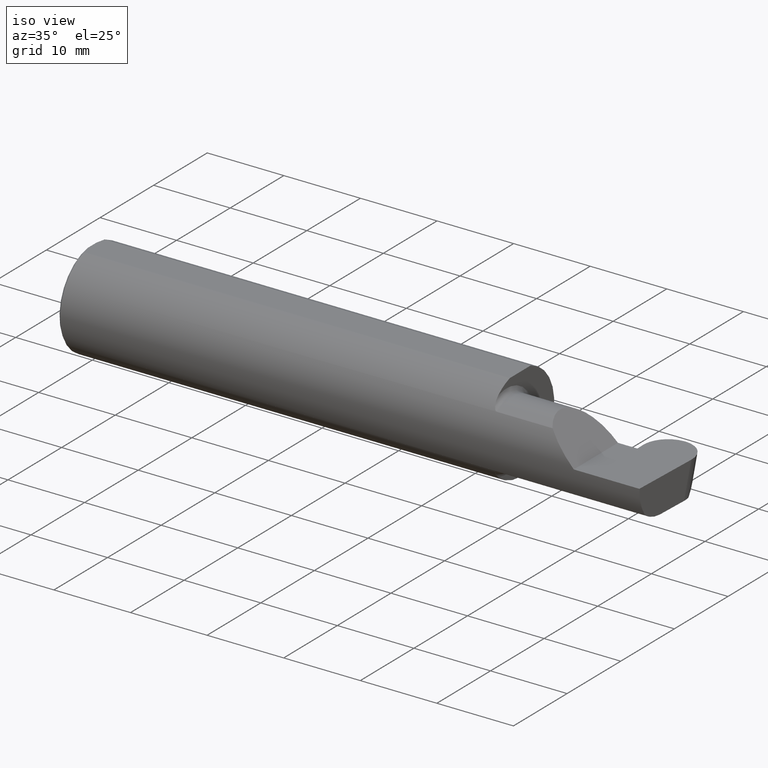
[diagram: clean part render]
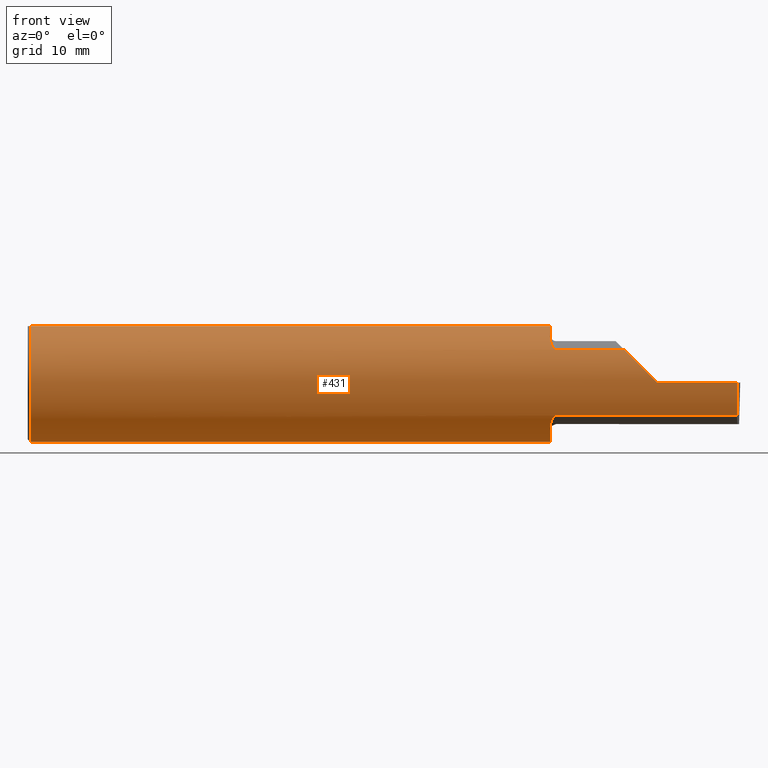
[diagram: tour spotlight — one face highlighted and labeled with its STEP entity id]
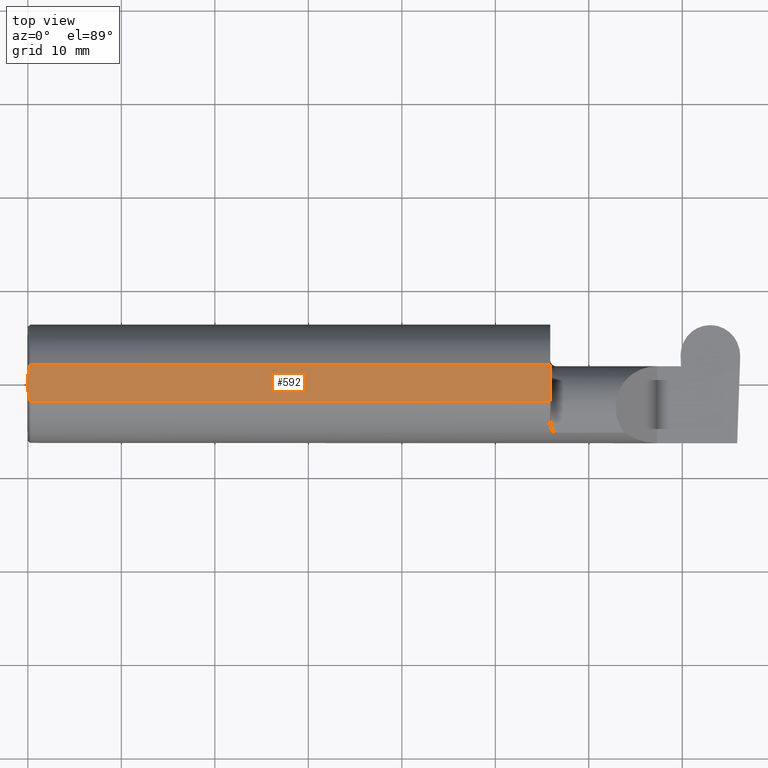
[diagram: tour spotlight — one face highlighted and labeled with its STEP entity id]
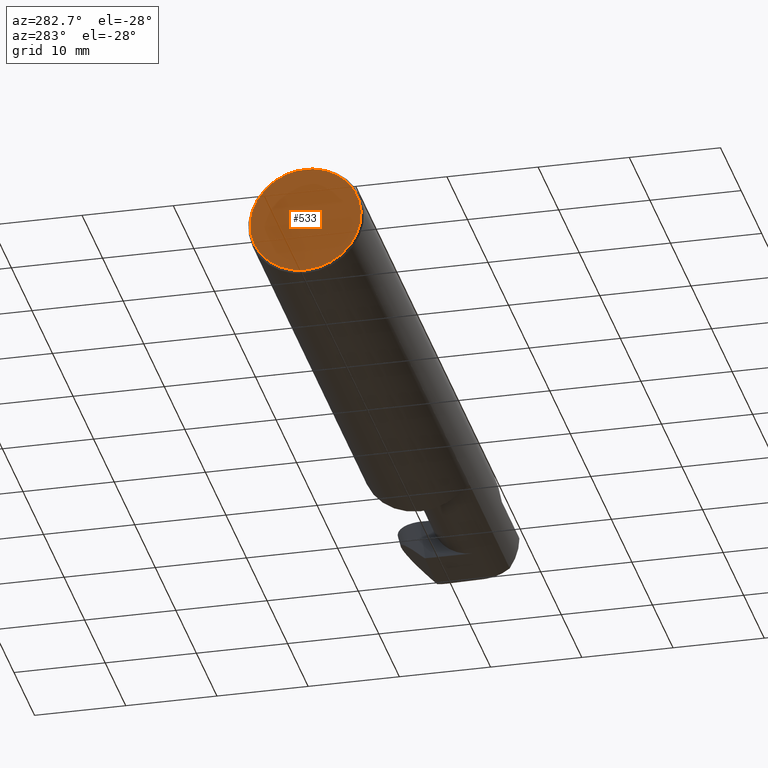
[diagram: tour spotlight — one face highlighted and labeled with its STEP entity id]
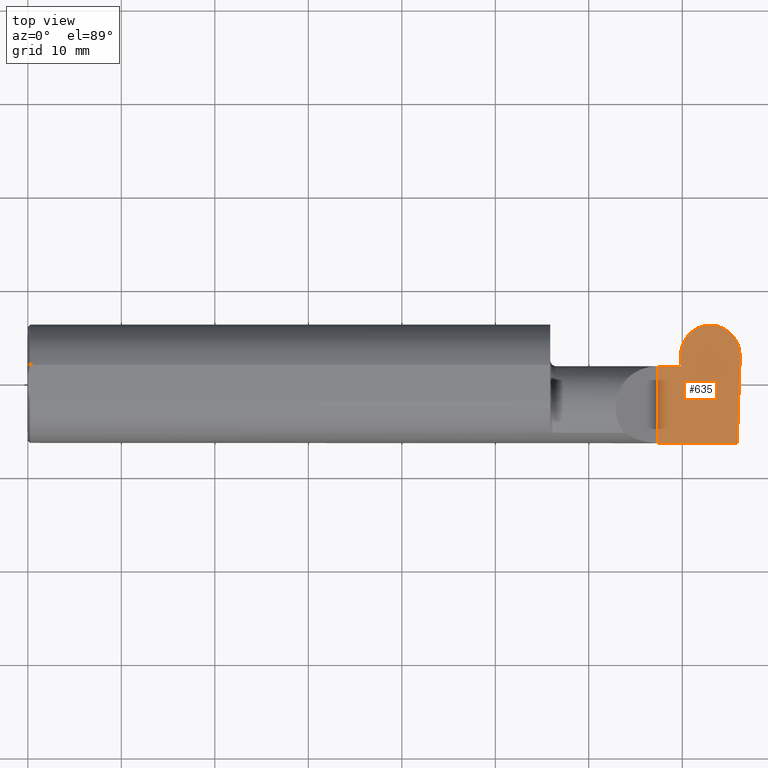
[diagram: tour spotlight — one face highlighted and labeled with its STEP entity id]
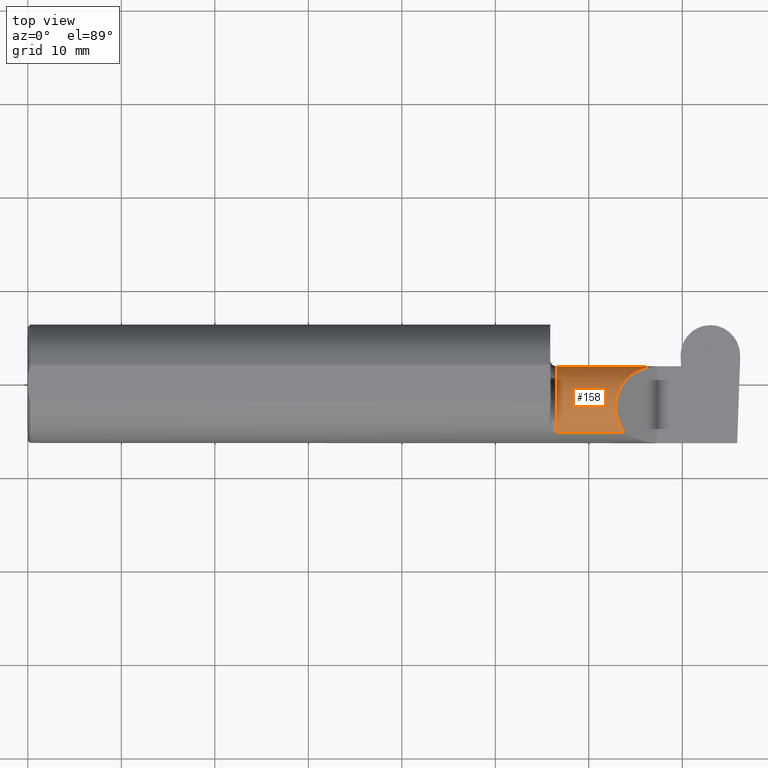
[diagram: tour spotlight — one face highlighted and labeled with its STEP entity id]
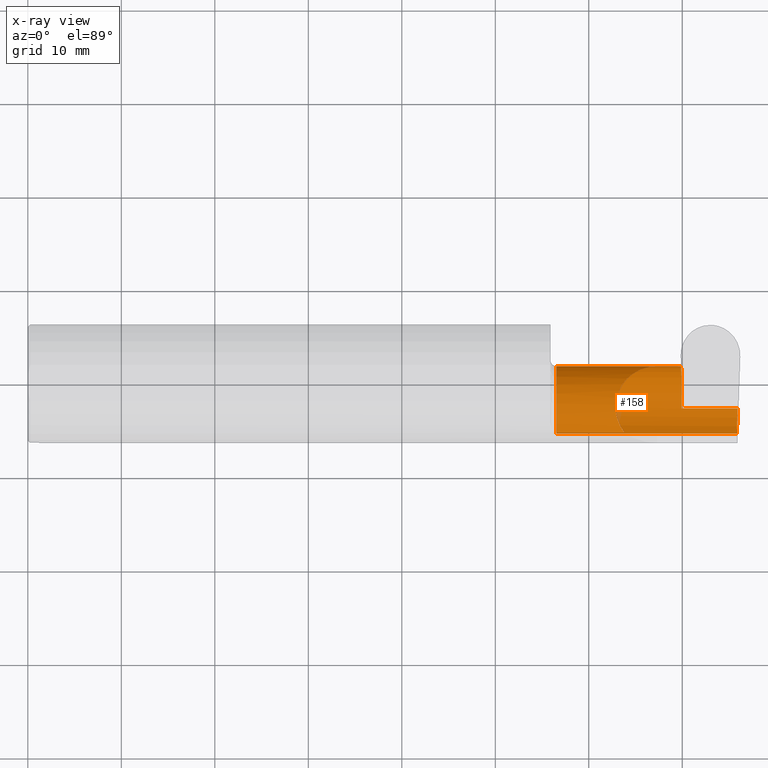
[diagram: x-ray of the same camera — body ghosted, this tour face saturated]
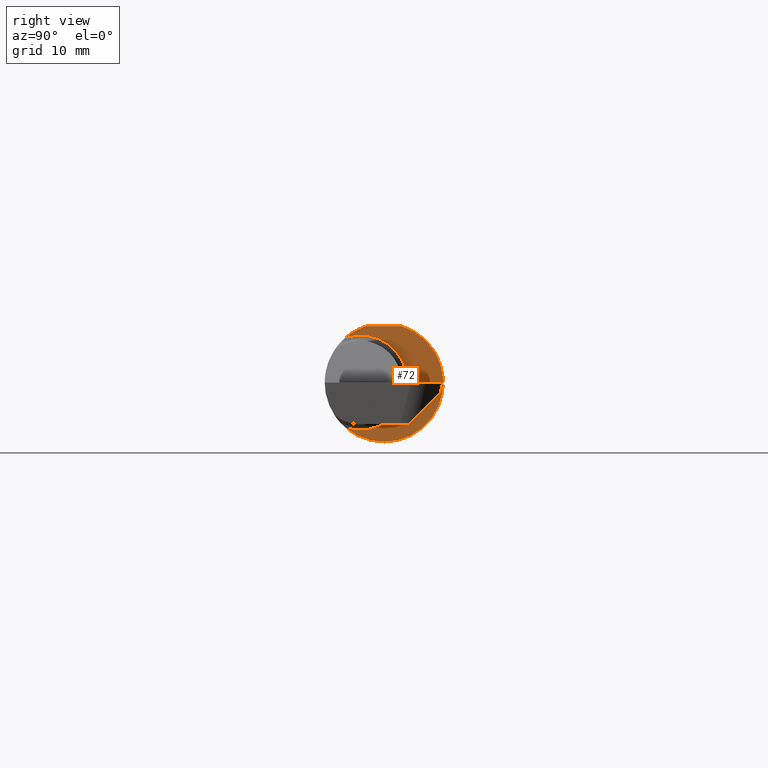
[diagram: tour spotlight — one face highlighted and labeled with its STEP entity id]
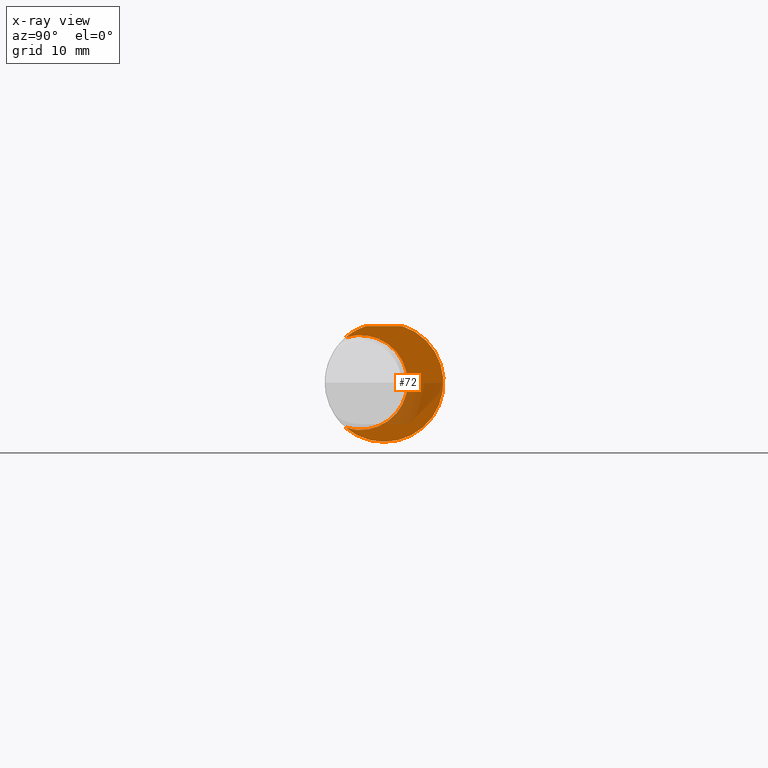
[diagram: x-ray of the same camera — body ghosted, this tour face saturated]
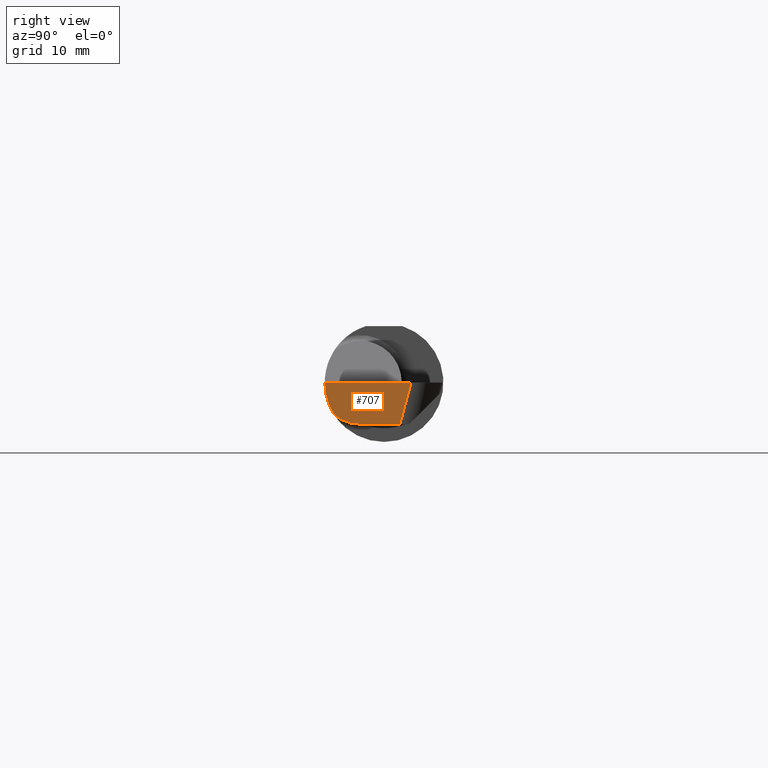
[diagram: tour spotlight — one face highlighted and labeled with its STEP entity id]
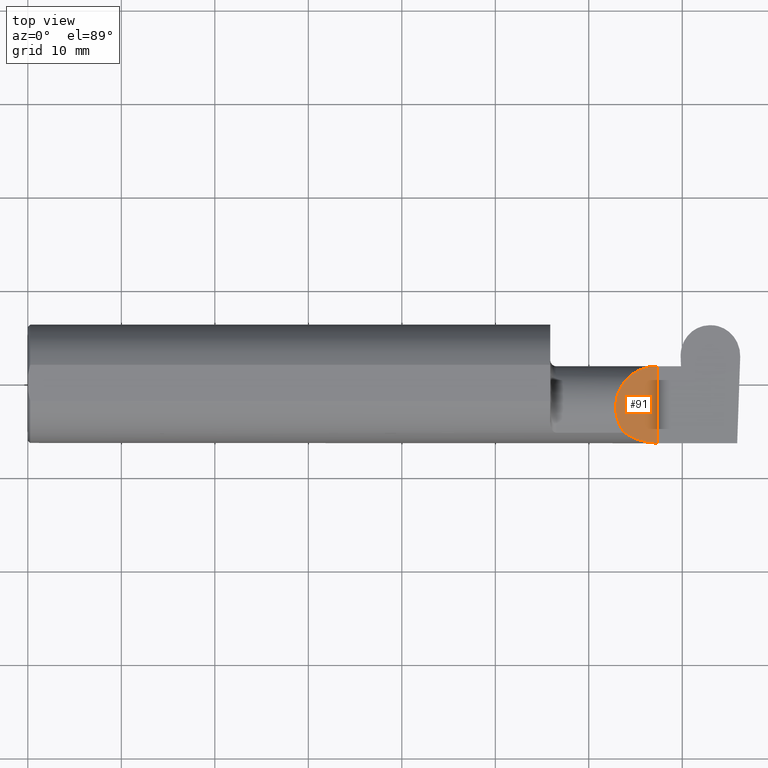
[diagram: tour spotlight — one face highlighted and labeled with its STEP entity id]
A machine part: a face-by-face anatomy tour. The part has 20 B-rep faces; the first image is the clean iso view, then the 8 largest visible faces are spotlighted one at a time (largest first), each with its STEP entity span.

Face 1 — front view, entity #431. In plain terms, the highlighted cylindrical surface (partial cylindrical patch) has radius 6.3462 mm, axis along (-1, -0, -0).
Definition (entity closure, byte-faithful):
#1 = CARTESIAN_POINT ( 'NONE',  ( 2.986150208451177512, -0.2080850024789288322, -0.1382955322609668858 ) ) ;
#6 = EDGE_CURVE ( 'NONE', #267, #198, #476, .T. ) ;
#10 = ORIENTED_EDGE ( 'NONE', *, *, #624, .F. ) ;
#12 = CARTESIAN_POINT ( 'NONE',  ( 0.009999999999999856226, 0.000000000000000000, 0.000000000000000000 ) ) ;
#29 = CARTESIAN_POINT ( 'NONE',  ( 2.212579853086618531, -0.2024300470081733250, -0.1464774911482687736 ) ) ;
#47 = ORIENTED_EDGE ( 'NONE', *, *, #657, .T. ) ;
#52 = DIRECTION ( 'NONE',  ( -1.000000000000000000, -2.177854163077307854E-16, -0.000000000000000000 ) ) ;
#66 = VECTOR ( 'NONE', #610, 39.37007874015748143 ) ;
#83 = ORIENTED_EDGE ( 'NONE', *, *, #325, .F. ) ;
#85 = DIRECTION ( 'NONE',  ( -1.000000000000000000, -0.000000000000000000, -0.000000000000000000 ) ) ;
#89 = ORIENTED_EDGE ( 'NONE', *, *, #317, .F. ) ;
#102 = EDGE_CURVE ( 'NONE', #382, #398, #595, .T. ) ;
#124 = CIRCLE ( 'NONE', #260, 0.2498499999999999888 ) ;
#131 = CARTESIAN_POINT ( 'NONE',  ( 2.212616400345756240, -0.2024684335577100480, 0.1464246884265642257 ) ) ;
#133 = CARTESIAN_POINT ( 'NONE',  ( 0.000000000000000000, 0.000000000000000000, 0.000000000000000000 ) ) ;
#136 = CARTESIAN_POINT ( 'NONE',  ( 2.987107171508847081, -0.2498499999999999888, 0.000000000000000000 ) ) ;
#141 = DIRECTION ( 'NONE',  ( 0.000000000000000000, 0.000000000000000000, 1.000000000000000000 ) ) ;
#144 = CARTESIAN_POINT ( 'NONE',  ( 2.217611663768900065, -0.2061921161193827901, -0.1411075319999380573 ) ) ;
#146 = CARTESIAN_POINT ( 'NONE',  ( 2.214302603425052141, -0.2041009206016210775, -0.1441313430770043147 ) ) ;
#151 = LINE ( 'NONE', #341, #577 ) ;
#189 = DIRECTION ( 'NONE',  ( 0.000000000000000000, 1.000000000000000000, 0.000000000000000000 ) ) ;
#192 = CARTESIAN_POINT ( 'NONE',  ( 2.214343523383979218, -0.2041337200786080275, 0.1440846171672516551 ) ) ;
#198 = VERTEX_POINT ( 'NONE', #558 ) ;
#201 = FACE_OUTER_BOUND ( 'NONE', #628, .T. ) ;
#203 = VECTOR ( 'NONE', #581, 39.37007874015748143 ) ;
#206 = CARTESIAN_POINT ( 'NONE',  ( 2.225000000000000089, -0.2080850024789287489, -0.1382955322609671633 ) ) ;
#212 = CARTESIAN_POINT ( 'NONE',  ( 0.000000000000000000, 0.07650098038587520299, 0.2378499999999998671 ) ) ;
#217 = ORIENTED_EDGE ( 'NONE', *, *, #233, .F. ) ;
#219 = CARTESIAN_POINT ( 'NONE',  ( 2.200000000000000178, 0.07650098038587520299, 0.2378499999999998671 ) ) ;
#230 = ORIENTED_EDGE ( 'NONE', *, *, #278, .F. ) ;
#232 = CARTESIAN_POINT ( 'NONE',  ( 2.486894750000000265, -0.2080850024789289432, 0.1382955322609668858 ) ) ;
#233 = EDGE_CURVE ( 'NONE', #258, #542, #151, .T. ) ;
#244 = CARTESIAN_POINT ( 'NONE',  ( 2.650000000000000355, -0.2498499999999999610, 4.286263797015729199E-17 ) ) ;
#248 = CARTESIAN_POINT ( 'NONE',  ( 0.009999999999999856226, 0.000000000000000000, 0.000000000000000000 ) ) ;
#253 = CARTESIAN_POINT ( 'NONE',  ( 2.223318040126429196, -0.2080850024789288599, -0.1382955322609670523 ) ) ;
#254 = CARTESIAN_POINT ( 'NONE',  ( 2.200000000000000178, -0.1616050818046602389, 0.1905487340154982112 ) ) ;
#258 = VERTEX_POINT ( 'NONE', #1 ) ;
#260 = AXIS2_PLACEMENT_3D ( 'NONE', #397, #514, #460 ) ;
#267 = VERTEX_POINT ( 'NONE', #626 ) ;
#270 = EDGE_CURVE ( 'NONE', #398, #684, #310, .T. ) ;
#273 = AXIS2_PLACEMENT_3D ( 'NONE', #248, #698, #527 ) ;
#278 = EDGE_CURVE ( 'NONE', #623, #267, #124, .T. ) ;
#281 = ORIENTED_EDGE ( 'NONE', *, *, #576, .T. ) ;
#283 = CARTESIAN_POINT ( 'NONE',  ( 2.986150208451177512, -0.2080850024789288322, -0.1382955322609668858 ) ) ;
#297 = LINE ( 'NONE', #742, #677 ) ;
#299 = VECTOR ( 'NONE', #394, 39.37007874015748143 ) ;
#300 = CARTESIAN_POINT ( 'NONE',  ( 2.201849548162864600, -0.1805300287242670443, 0.1728462070311782561 ) ) ;
#303 = CARTESIAN_POINT ( 'NONE',  ( 2.225000000000000089, -0.2080850024789289432, 0.1382955322609670801 ) ) ;
#310 = CIRCLE ( 'NONE', #471, 0.2498499999999999888 ) ;
#312 = CARTESIAN_POINT ( 'NONE',  ( 2.202968662030528435, -0.1849684355203375652, 0.1680843977756270868 ) ) ;
#314 = CARTESIAN_POINT ( 'NONE',  ( 2.221718393013767834, -0.2077830475237238683, 0.1387513848711940390 ) ) ;
#317 = EDGE_CURVE ( 'NONE', #342, #556, #627, .T. ) ;
#325 = EDGE_CURVE ( 'NONE', #198, #347, #685, .T. ) ;
#327 = CARTESIAN_POINT ( 'NONE',  ( 2.987107171508847081, -0.2498499999999999888, 0.000000000000000000 ) ) ;
#341 = CARTESIAN_POINT ( 'NONE',  ( 2.486894750000000265, -0.2080850024789289432, -0.1382955322609668858 ) ) ;
#342 = VERTEX_POINT ( 'NONE', #522 ) ;
#347 = VERTEX_POINT ( 'NONE', #456 ) ;
#358 = CARTESIAN_POINT ( 'NONE',  ( 2.200367168219774072, -0.1713400252854601069, 0.1819601557798507796 ) ) ;
#362 = B_SPLINE_CURVE_WITH_KNOTS ( 'NONE', 3,
 ( #372, #253, #645, #481, #144, #146, #29, #598, #656, #660, #603, #540 ),
 .UNSPECIFIED., .F., .F.,
 ( 4, 2, 2, 2, 2, 4 ),
 ( 1.964491429042083594E-07, 0.0001260981470478290977, 0.0002519998449527540156, 0.0005038032407626177834, 0.001007410032382344452, 0.002014623615621801474 ),
 .UNSPECIFIED. ) ;
#363 = EDGE_CURVE ( 'NONE', #699, #347, #689, .T. ) ;
#367 = CARTESIAN_POINT ( 'NONE',  ( 0.009999999999999856226, 0.000000000000000000, -0.2498499999999999888 ) ) ;
#372 = CARTESIAN_POINT ( 'NONE',  ( 2.225000000000000089, -0.2080850024789287489, -0.1382955322609671633 ) ) ;
#382 = VERTEX_POINT ( 'NONE', #412 ) ;
#383 = LINE ( 'NONE', #212, #66 ) ;
#387 = CARTESIAN_POINT ( 'NONE',  ( 2.986241469175252128, -0.2498499999999999610, -0.04956584089959703565 ) ) ;
#390 = CARTESIAN_POINT ( 'NONE',  ( 2.200000000000000178, -0.07650098038587527238, 0.2378499999999998671 ) ) ;
#394 = DIRECTION ( 'NONE',  ( -1.000000000000000000, -0.000000000000000000, -0.000000000000000000 ) ) ;
#397 = CARTESIAN_POINT ( 'NONE',  ( 2.200000000000000178, 0.000000000000000000, 0.000000000000000000 ) ) ;
#398 = VERTEX_POINT ( 'NONE', #367 ) ;
#405 = DIRECTION ( 'NONE',  ( 1.000000000000000000, 0.000000000000000000, 0.000000000000000000 ) ) ;
#408 = CARTESIAN_POINT ( 'NONE',  ( 2.600434159100402987, -0.2498499999999999610, 0.04956584089959713973 ) ) ;
#412 = CARTESIAN_POINT ( 'NONE',  ( 0.009999999999999856226, -0.07650098038587520299, 0.2378499999999998671 ) ) ;
#419 = CARTESIAN_POINT ( 'NONE',  ( 2.206159563508734323, -0.1933019864360846496, 0.1584298865564834902 ) ) ;
#431 = ADVANCED_FACE ( 'NONE', ( #201 ), #709, .T. ) ;
#447 = EDGE_CURVE ( 'NONE', #542, #342, #362, .T. ) ;
#456 = CARTESIAN_POINT ( 'NONE',  ( 2.511704467739031887, -0.2080850024789288599, 0.1382955322609669968 ) ) ;
#460 = DIRECTION ( 'NONE',  ( 0.000000000000000000, 1.000000000000000000, 0.000000000000000000 ) ) ;
#468 = DIRECTION ( 'NONE',  ( 1.000000000000000000, 2.177854163077307854E-16, 0.000000000000000000 ) ) ;
#471 = AXIS2_PLACEMENT_3D ( 'NONE', #12, #405, #631 ) ;
#476 = B_SPLINE_CURVE_WITH_KNOTS ( 'NONE', 3,
 ( #254, #519, #358, #300, #312, #419, #706, #131, #192, #593, #536, #314, #534, #303 ),
 .UNSPECIFIED., .F., .F.,
 ( 4, 2, 2, 2, 2, 2, 4 ),
 ( 0.0003834465838148119385, 0.0008781406165086554517, 0.001372834649202498911, 0.001867528681896342370, 0.002114875698243268761, 0.002238549206416739004, 0.002362222714590209247 ),
 .UNSPECIFIED. ) ;
#481 = CARTESIAN_POINT ( 'NONE',  ( 2.218863362722770294, -0.2068301641248767309, -0.1401678546132364422 ) ) ;
#483 = VERTEX_POINT ( 'NONE', #136 ) ;
#490 = ORIENTED_EDGE ( 'NONE', *, *, #270, .T. ) ;
#495 = ORIENTED_EDGE ( 'NONE', *, *, #716, .F. ) ;
#514 = DIRECTION ( 'NONE',  ( 1.000000000000000000, 2.177854163077307854E-16, 0.000000000000000000 ) ) ;
#516 = AXIS2_PLACEMENT_3D ( 'NONE', #694, #468, #189 ) ;
#519 = CARTESIAN_POINT ( 'NONE',  ( 2.200000000000000622, -0.1665641037263007607, 0.1863429692936364179 ) ) ;
#522 = CARTESIAN_POINT ( 'NONE',  ( 2.200000000000000178, -0.1616050818046602389, -0.1905487340154982112 ) ) ;
#527 = DIRECTION ( 'NONE',  ( 0.000000000000000000, 0.000000000000000000, -1.000000000000000000 ) ) ;
#534 = CARTESIAN_POINT ( 'NONE',  ( 2.223329956043142097, -0.2080850024798588660, 0.1382955322595677827 ) ) ;
#536 = CARTESIAN_POINT ( 'NONE',  ( 2.218876997637615478, -0.2068363917296598409, 0.1401586554522233075 ) ) ;
#540 = CARTESIAN_POINT ( 'NONE',  ( 2.200000000000000178, -0.1616050818046602389, -0.1905487340154982112 ) ) ;
#542 = VERTEX_POINT ( 'NONE', #206 ) ;
#545 = CARTESIAN_POINT ( 'NONE',  ( 2.985913134503198840, -0.2355204011147991605, -0.09701513151466768792 ) ) ;
#547 = ORIENTED_EDGE ( 'NONE', *, *, #363, .T. ) ;
#548 = CARTESIAN_POINT ( 'NONE',  ( 0.009999999999999856226, 0.07650098038587520299, 0.2378499999999998671 ) ) ;
#556 = VERTEX_POINT ( 'NONE', #219 ) ;
#557 = CARTESIAN_POINT ( 'NONE',  ( 4.499279347985562423E-32, -0.2498499999999999610, 3.673940397442054938E-16 ) ) ;
#558 = CARTESIAN_POINT ( 'NONE',  ( 2.225000000000000089, -0.2080850024789289432, 0.1382955322609670801 ) ) ;
#570 = DIRECTION ( 'NONE',  ( 1.000000000000000000, 0.000000000000000000, 0.000000000000000000 ) ) ;
#576 = EDGE_CURVE ( 'NONE', #258, #483, #733, .T. ) ;
#577 = VECTOR ( 'NONE', #52, 39.37007874015748143 ) ;
#581 = DIRECTION ( 'NONE',  ( 1.000000000000000000, 2.177854163077307854E-16, 0.000000000000000000 ) ) ;
#593 = CARTESIAN_POINT ( 'NONE',  ( 2.217647060162628581, -0.2062109266231179072, 0.1410799729252295298 ) ) ;
#595 = CIRCLE ( 'NONE', #273, 0.2498499999999999888 ) ;
#598 = CARTESIAN_POINT ( 'NONE',  ( 2.208176740666625282, -0.1972027065478071106, -0.1535263573771916690 ) ) ;
#599 = ORIENTED_EDGE ( 'NONE', *, *, #447, .F. ) ;
#603 = CARTESIAN_POINT ( 'NONE',  ( 2.199999999999998845, -0.1716188362992552285, -0.1820560320165482138 ) ) ;
#610 = DIRECTION ( 'NONE',  ( -1.000000000000000000, -0.000000000000000000, -0.000000000000000000 ) ) ;
#623 = VERTEX_POINT ( 'NONE', #390 ) ;
#624 = EDGE_CURVE ( 'NONE', #556, #684, #383, .T. ) ;
#626 = CARTESIAN_POINT ( 'NONE',  ( 2.200000000000000178, -0.1616050818046602389, 0.1905487340154982112 ) ) ;
#627 = CIRCLE ( 'NONE', #516, 0.2498499999999999888 ) ;
#628 = EDGE_LOOP ( 'NONE', ( #217, #281, #47, #547, #83, #741, #230, #495, #679, #490, #10, #89, #599 ) ) ;
#631 = DIRECTION ( 'NONE',  ( 0.000000000000000000, 0.000000000000000000, -1.000000000000000000 ) ) ;
#638 = CARTESIAN_POINT ( 'NONE',  ( 2.511704467739031887, -0.2080850024789288599, 0.1382955322609669968 ) ) ;
#645 = CARTESIAN_POINT ( 'NONE',  ( 2.221700027347578654, -0.2077785947292765112, -0.1387580622202829739 ) ) ;
#656 = CARTESIAN_POINT ( 'NONE',  ( 2.206147634408387681, -0.1932733126899458809, -0.1584637047788199637 ) ) ;
#657 = EDGE_CURVE ( 'NONE', #483, #699, #726, .T. ) ;
#660 = CARTESIAN_POINT ( 'NONE',  ( 2.201385488563270432, -0.1808287530430323642, -0.1728790649396289847 ) ) ;
#677 = VECTOR ( 'NONE', #570, 39.37007874015748143 ) ;
#679 = ORIENTED_EDGE ( 'NONE', *, *, #102, .T. ) ;
#684 = VERTEX_POINT ( 'NONE', #548 ) ;
#685 = LINE ( 'NONE', #232, #203 ) ;
#689 =( BOUNDED_CURVE ( )  B_SPLINE_CURVE ( 3, ( #244, #408, #743, #638 ),
 .UNSPECIFIED., .F., .T. ) 
 B_SPLINE_CURVE_WITH_KNOTS ( ( 4, 4 ),
 ( 4.712388980384689674, 5.298966915116348986 ),
 .UNSPECIFIED. ) 
 CURVE ( )  GEOMETRIC_REPRESENTATION_ITEM ( )  RATIONAL_B_SPLINE_CURVE ( ( 1.000000000000000000, 0.9715321379117536349, 0.9715321379117536349, 1.000000000000000000 ) ) 
 REPRESENTATION_ITEM ( '' )  );
#694 = CARTESIAN_POINT ( 'NONE',  ( 2.200000000000000178, 0.000000000000000000, 0.000000000000000000 ) ) ;
#698 = DIRECTION ( 'NONE',  ( 1.000000000000000000, 0.000000000000000000, 0.000000000000000000 ) ) ;
#699 = VERTEX_POINT ( 'NONE', #739 ) ;
#706 = CARTESIAN_POINT ( 'NONE',  ( 2.208182335268384033, -0.1972192205116129193, 0.1535061413537213149 ) ) ;
#709 = CYLINDRICAL_SURFACE ( 'NONE', #736, 0.2498499999999999888 ) ;
#716 = EDGE_CURVE ( 'NONE', #382, #623, #297, .T. ) ;
#726 = LINE ( 'NONE', #557, #299 ) ;
#733 =( BOUNDED_CURVE ( )  B_SPLINE_CURVE ( 3, ( #283, #545, #387, #327 ),
 .UNSPECIFIED., .F., .T. ) 
 B_SPLINE_CURVE_WITH_KNOTS ( ( 4, 4 ),
 ( 6.160376845738950280, 6.746954780470608704 ),
 .UNSPECIFIED. ) 
 CURVE ( )  GEOMETRIC_REPRESENTATION_ITEM ( )  RATIONAL_B_SPLINE_CURVE ( ( 1.000000000000000000, 0.9715321379117538569, 0.9715321379117538569, 1.000000000000000000 ) ) 
 REPRESENTATION_ITEM ( '' )  );
#736 = AXIS2_PLACEMENT_3D ( 'NONE', #133, #85, #141 ) ;
#739 = CARTESIAN_POINT ( 'NONE',  ( 2.650000000000000355, -0.2498499999999999610, 4.286263797015729199E-17 ) ) ;
#741 = ORIENTED_EDGE ( 'NONE', *, *, #6, .F. ) ;
#742 = CARTESIAN_POINT ( 'NONE',  ( 0.000000000000000000, -0.07650098038587520299, 0.2378499999999998671 ) ) ;
#743 = CARTESIAN_POINT ( 'NONE',  ( 2.552984868485331571, -0.2355204011147991605, 0.09701513151466779894 ) ) ;

Face 2 — top view, entity #592. In plain terms, the highlighted planar face has unit normal (0, 0, 1).
Definition (entity closure, byte-faithful):
#7 = CARTESIAN_POINT ( 'NONE',  ( 0.002005502345409059580, 0.04647171987093979412, 0.2378499999999998671 ) ) ;
#21 = B_SPLINE_CURVE_WITH_KNOTS ( 'NONE', 3,
 ( #477, #591, #88, #249 ),
 .UNSPECIFIED., .F., .F.,
 ( 4, 4 ),
 ( 0.01317593029100230795, 0.01435802289191462008 ),
 .UNSPECIFIED. ) ;
#53 = VECTOR ( 'NONE', #163, 39.37007874015748143 ) ;
#66 = VECTOR ( 'NONE', #610, 39.37007874015748143 ) ;
#88 = CARTESIAN_POINT ( 'NONE',  ( 0.001983148254845701515, -0.04629825796642599717, 0.2378499999999998671 ) ) ;
#93 = ORIENTED_EDGE ( 'NONE', *, *, #624, .T. ) ;
#98 = CARTESIAN_POINT ( 'NONE',  ( 0.000000000000000000, 0.2498499999999998500, 0.2378499999999998671 ) ) ;
#101 = VECTOR ( 'NONE', #215, 39.37007874015748143 ) ;
#110 = CARTESIAN_POINT ( 'NONE',  ( 0.009999999999999856226, 0.07650098038587520299, 0.2378499999999998671 ) ) ;
#119 = CARTESIAN_POINT ( 'NONE',  ( 0.000000000000000000, 0.03090954545120574992, 0.2378499999999998671 ) ) ;
#160 = DIRECTION ( 'NONE',  ( 0.000000000000000000, 0.000000000000000000, 1.000000000000000000 ) ) ;
#163 = DIRECTION ( 'NONE',  ( -2.177854163077307854E-16, 1.000000000000000000, 0.000000000000000000 ) ) ;
#175 = EDGE_CURVE ( 'NONE', #623, #556, #549, .T. ) ;
#212 = CARTESIAN_POINT ( 'NONE',  ( 0.000000000000000000, 0.07650098038587520299, 0.2378499999999998671 ) ) ;
#215 = DIRECTION ( 'NONE',  ( -0.000000000000000000, 1.000000000000000000, -0.000000000000000000 ) ) ;
#219 = CARTESIAN_POINT ( 'NONE',  ( 2.200000000000000178, 0.07650098038587520299, 0.2378499999999998671 ) ) ;
#221 = B_SPLINE_CURVE_WITH_KNOTS ( 'NONE', 3,
 ( #119, #7, #696, #110 ),
 .UNSPECIFIED., .F., .F.,
 ( 4, 4 ),
 ( 0.01593449416844770414, 0.01712021724825603733 ),
 .UNSPECIFIED. ) ;
#223 = LINE ( 'NONE', #98, #101 ) ;
#249 = CARTESIAN_POINT ( 'NONE',  ( 0.000000000000000000, -0.03090954545120560767, 0.2378499999999998671 ) ) ;
#297 = LINE ( 'NONE', #742, #677 ) ;
#331 = VERTEX_POINT ( 'NONE', #352 ) ;
#333 = AXIS2_PLACEMENT_3D ( 'NONE', #621, #160, #491 ) ;
#338 = CARTESIAN_POINT ( 'NONE',  ( 2.200000000000000178, 0.2498499999999996002, 0.2378499999999998671 ) ) ;
#351 = EDGE_LOOP ( 'NONE', ( #731, #457, #93, #513, #605, #374 ) ) ;
#352 = CARTESIAN_POINT ( 'NONE',  ( 0.000000000000000000, -0.03090954545120560767, 0.2378499999999998671 ) ) ;
#374 = ORIENTED_EDGE ( 'NONE', *, *, #499, .F. ) ;
#382 = VERTEX_POINT ( 'NONE', #412 ) ;
#383 = LINE ( 'NONE', #212, #66 ) ;
#390 = CARTESIAN_POINT ( 'NONE',  ( 2.200000000000000178, -0.07650098038587527238, 0.2378499999999998671 ) ) ;
#412 = CARTESIAN_POINT ( 'NONE',  ( 0.009999999999999856226, -0.07650098038587520299, 0.2378499999999998671 ) ) ;
#457 = ORIENTED_EDGE ( 'NONE', *, *, #175, .T. ) ;
#477 = CARTESIAN_POINT ( 'NONE',  ( 0.009999999999999856226, -0.07650098038587520299, 0.2378499999999998671 ) ) ;
#491 = DIRECTION ( 'NONE',  ( 1.000000000000000000, 0.000000000000000000, -0.000000000000000000 ) ) ;
#499 = EDGE_CURVE ( 'NONE', #382, #331, #21, .T. ) ;
#504 = CARTESIAN_POINT ( 'NONE',  ( 0.000000000000000000, 0.03090954545120574992, 0.2378499999999998671 ) ) ;
#513 = ORIENTED_EDGE ( 'NONE', *, *, #735, .F. ) ;
#548 = CARTESIAN_POINT ( 'NONE',  ( 0.009999999999999856226, 0.07650098038587520299, 0.2378499999999998671 ) ) ;
#549 = LINE ( 'NONE', #338, #53 ) ;
#551 = FACE_OUTER_BOUND ( 'NONE', #351, .T. ) ;
#556 = VERTEX_POINT ( 'NONE', #219 ) ;
#570 = DIRECTION ( 'NONE',  ( 1.000000000000000000, 0.000000000000000000, 0.000000000000000000 ) ) ;
#591 = CARTESIAN_POINT ( 'NONE',  ( 0.005459900170181723050, -0.06167314502012866823, 0.2378499999999998671 ) ) ;
#592 = ADVANCED_FACE ( 'NONE', ( #551 ), #723, .T. ) ;
#602 = EDGE_CURVE ( 'NONE', #331, #661, #223, .T. ) ;
#605 = ORIENTED_EDGE ( 'NONE', *, *, #602, .F. ) ;
#610 = DIRECTION ( 'NONE',  ( -1.000000000000000000, -0.000000000000000000, -0.000000000000000000 ) ) ;
#621 = CARTESIAN_POINT ( 'NONE',  ( 3.501298404146671484, 0.2498499999999998500, 0.2378499999999998671 ) ) ;
#623 = VERTEX_POINT ( 'NONE', #390 ) ;
#624 = EDGE_CURVE ( 'NONE', #556, #684, #383, .T. ) ;
#661 = VERTEX_POINT ( 'NONE', #504 ) ;
#677 = VECTOR ( 'NONE', #570, 39.37007874015748143 ) ;
#684 = VERTEX_POINT ( 'NONE', #548 ) ;
#696 = CARTESIAN_POINT ( 'NONE',  ( 0.005466242398876384675, 0.06169385855649840017, 0.2378499999999998671 ) ) ;
#716 = EDGE_CURVE ( 'NONE', #382, #623, #297, .T. ) ;
#723 = PLANE ( 'NONE',  #333 ) ;
#731 = ORIENTED_EDGE ( 'NONE', *, *, #716, .T. ) ;
#735 = EDGE_CURVE ( 'NONE', #661, #684, #221, .T. ) ;
#742 = CARTESIAN_POINT ( 'NONE',  ( 0.000000000000000000, -0.07650098038587520299, 0.2378499999999998671 ) ) ;

Face 3 — auxiliary view, entity #533. In plain terms, the highlighted planar face has unit normal (1, 0, 0).
Definition (entity closure, byte-faithful):
#23 = FACE_OUTER_BOUND ( 'NONE', #528, .T. ) ;
#36 = ORIENTED_EDGE ( 'NONE', *, *, #469, .T. ) ;
#76 = CARTESIAN_POINT ( 'NONE',  ( 0.000000000000000000, 0.000000000000000000, 0.000000000000000000 ) ) ;
#82 = PLANE ( 'NONE',  #604 ) ;
#98 = CARTESIAN_POINT ( 'NONE',  ( 0.000000000000000000, 0.2498499999999998500, 0.2378499999999998671 ) ) ;
#101 = VECTOR ( 'NONE', #215, 39.37007874015748143 ) ;
#191 = CIRCLE ( 'NONE', #555, 0.2398500000000001742 ) ;
#215 = DIRECTION ( 'NONE',  ( -0.000000000000000000, 1.000000000000000000, -0.000000000000000000 ) ) ;
#223 = LINE ( 'NONE', #98, #101 ) ;
#259 = CARTESIAN_POINT ( 'NONE',  ( 0.000000000000000000, 0.000000000000000000, 0.000000000000000000 ) ) ;
#331 = VERTEX_POINT ( 'NONE', #352 ) ;
#352 = CARTESIAN_POINT ( 'NONE',  ( 0.000000000000000000, -0.03090954545120560767, 0.2378499999999998671 ) ) ;
#411 = CIRCLE ( 'NONE', #737, 0.2398500000000001742 ) ;
#432 = ORIENTED_EDGE ( 'NONE', *, *, #602, .T. ) ;
#465 = ORIENTED_EDGE ( 'NONE', *, *, #546, .T. ) ;
#469 = EDGE_CURVE ( 'NONE', #695, #331, #411, .T. ) ;
#472 = DIRECTION ( 'NONE',  ( 0.000000000000000000, 0.000000000000000000, -1.000000000000000000 ) ) ;
#485 = DIRECTION ( 'NONE',  ( 1.000000000000000000, 0.000000000000000000, 0.000000000000000000 ) ) ;
#489 = DIRECTION ( 'NONE',  ( -1.000000000000000000, -0.000000000000000000, -0.000000000000000000 ) ) ;
#493 = DIRECTION ( 'NONE',  ( -1.000000000000000000, -0.000000000000000000, -0.000000000000000000 ) ) ;
#504 = CARTESIAN_POINT ( 'NONE',  ( 0.000000000000000000, 0.03090954545120574992, 0.2378499999999998671 ) ) ;
#528 = EDGE_LOOP ( 'NONE', ( #432, #465, #36 ) ) ;
#533 = ADVANCED_FACE ( 'NONE', ( #23 ), #82, .F. ) ;
#546 = EDGE_CURVE ( 'NONE', #661, #695, #191, .T. ) ;
#555 = AXIS2_PLACEMENT_3D ( 'NONE', #674, #493, #662 ) ;
#602 = EDGE_CURVE ( 'NONE', #331, #661, #223, .T. ) ;
#604 = AXIS2_PLACEMENT_3D ( 'NONE', #259, #485, #715 ) ;
#630 = CARTESIAN_POINT ( 'NONE',  ( 0.000000000000000000, 0.000000000000000000, -0.2398500000000001742 ) ) ;
#661 = VERTEX_POINT ( 'NONE', #504 ) ;
#662 = DIRECTION ( 'NONE',  ( 0.000000000000000000, 0.000000000000000000, -1.000000000000000000 ) ) ;
#674 = CARTESIAN_POINT ( 'NONE',  ( 0.000000000000000000, 0.000000000000000000, 0.000000000000000000 ) ) ;
#695 = VERTEX_POINT ( 'NONE', #630 ) ;
#715 = DIRECTION ( 'NONE',  ( 0.000000000000000000, 0.000000000000000000, -1.000000000000000000 ) ) ;
#737 = AXIS2_PLACEMENT_3D ( 'NONE', #76, #489, #472 ) ;

Face 4 — top view, entity #635. In plain terms, the highlighted planar face has unit normal (-0, 0, -1).
Definition (entity closure, byte-faithful):
#11 = CARTESIAN_POINT ( 'NONE',  ( 2.750367999175829414, 0.07414999999999984104, 0.000000000000000000 ) ) ;
#17 = EDGE_CURVE ( 'NONE', #699, #257, #646, .T. ) ;
#20 = CARTESIAN_POINT ( 'NONE',  ( 3.002511784637379222, 0.1912804032740405558, -7.160714913043396685E-18 ) ) ;
#22 = DIRECTION ( 'NONE',  ( 1.000000000000000000, -0.000000000000000000, -0.000000000000000000 ) ) ;
#39 = CARTESIAN_POINT ( 'NONE',  ( 2.799820610884365735, 0.2471500000000000086, 2.591218986574985943E-17 ) ) ;
#44 = ORIENTED_EDGE ( 'NONE', *, *, #296, .F. ) ;
#48 = EDGE_CURVE ( 'NONE', #295, #713, #474, .T. ) ;
#49 = CARTESIAN_POINT ( 'NONE',  ( 2.748789500000000441, 0.1196039745734777532, 3.076441347372056086E-17 ) ) ;
#54 = ORIENTED_EDGE ( 'NONE', *, *, #745, .F. ) ;
#74 = CARTESIAN_POINT ( 'NONE',  ( -0.002039370078740339320, 0.2471499999999999808, 0.000000000000000000 ) ) ;
#78 =( BOUNDED_CURVE ( )  B_SPLINE_CURVE ( 3, ( #426, #39, #269, #724 ),
 .UNSPECIFIED., .F., .T. ) 
 B_SPLINE_CURVE_WITH_KNOTS ( ( 4, 4 ),
 ( -8.881784197001252323E-16, 1.570796326794895892 ),
 .UNSPECIFIED. ) 
 CURVE ( )  GEOMETRIC_REPRESENTATION_ITEM ( )  RATIONAL_B_SPLINE_CURVE ( ( 1.000000000000000000, 0.8047378541243649375, 0.8047378541243649375, 1.000000000000000000 ) ) 
 REPRESENTATION_ITEM ( '' )  );
#94 = DIRECTION ( 'NONE',  ( -1.224646799147351975E-16, 0.000000000000000000, -1.000000000000000000 ) ) ;
#109 = ORIENTED_EDGE ( 'NONE', *, *, #423, .F. ) ;
#112 = CARTESIAN_POINT ( 'NONE',  ( 2.871989500000000195, 0.2471499999999999808, 0.000000000000000000 ) ) ;
#114 = ORIENTED_EDGE ( 'NONE', *, *, #512, .T. ) ;
#117 = LINE ( 'NONE', #634, #148 ) ;
#136 = CARTESIAN_POINT ( 'NONE',  ( 2.987107171508847081, -0.2498499999999999888, 0.000000000000000000 ) ) ;
#148 = VECTOR ( 'NONE', #697, 39.37007874015748143 ) ;
#156 = DIRECTION ( 'NONE',  ( 1.000000000000000000, -0.000000000000000000, -0.000000000000000000 ) ) ;
#162 = VECTOR ( 'NONE', #197, 39.37007874015748143 ) ;
#179 = VECTOR ( 'NONE', #535, 39.37007874015748143 ) ;
#193 = CARTESIAN_POINT ( 'NONE',  ( 2.999793206199442785, 0.1134305025558126345, 0.000000000000000000 ) ) ;
#196 = CARTESIAN_POINT ( 'NONE',  ( 2.739326706053758276, 0.07414999999999984104, 0.000000000000000000 ) ) ;
#197 = DIRECTION ( 'NONE',  ( -0.000000000000000000, 1.000000000000000000, -0.000000000000000000 ) ) ;
#211 = ORIENTED_EDGE ( 'NONE', *, *, #657, .F. ) ;
#225 = VERTEX_POINT ( 'NONE', #622 ) ;
#243 = EDGE_CURVE ( 'NONE', #295, #651, #78, .T. ) ;
#257 = VERTEX_POINT ( 'NONE', #302 ) ;
#269 = CARTESIAN_POINT ( 'NONE',  ( 2.748789500000000441, 0.1943187064415508591, 3.216169852589702048E-17 ) ) ;
#274 = VECTOR ( 'NONE', #407, 39.37007874015748143 ) ;
#275 = CARTESIAN_POINT ( 'NONE',  ( 2.750367999175829414, 0.07414999999999984104, 0.000000000000000000 ) ) ;
#279 = FACE_OUTER_BOUND ( 'NONE', #492, .T. ) ;
#295 = VERTEX_POINT ( 'NONE', #112 ) ;
#296 = EDGE_CURVE ( 'NONE', #257, #435, #117, .T. ) ;
#299 = VECTOR ( 'NONE', #394, 39.37007874015748143 ) ;
#302 = CARTESIAN_POINT ( 'NONE',  ( 2.650000000000000355, 0.07414999999999999369, 9.797174393178813824E-17 ) ) ;
#313 = LINE ( 'NONE', #531, #179 ) ;
#318 = CARTESIAN_POINT ( 'NONE',  ( 2.748866015324560319, 0.1171611899918090366, 0.000000000000000000 ) ) ;
#320 = ORIENTED_EDGE ( 'NONE', *, *, #568, .F. ) ;
#323 = CARTESIAN_POINT ( 'NONE',  ( 3.000000000000000444, -0.2500000000000000555, 0.000000000000000000 ) ) ;
#332 = VECTOR ( 'NONE', #430, 39.37007874015748143 ) ;
#348 = CARTESIAN_POINT ( 'NONE',  ( 2.875201260087795863, 0.2471499999999999808, 0.000000000000000000 ) ) ;
#365 = ORIENTED_EDGE ( 'NONE', *, *, #243, .T. ) ;
#378 = VECTOR ( 'NONE', #22, 39.37007874015748143 ) ;
#394 = DIRECTION ( 'NONE',  ( -1.000000000000000000, -0.000000000000000000, -0.000000000000000000 ) ) ;
#407 = DIRECTION ( 'NONE',  ( -0.03489949670249543195, -0.9993908270190959842, 0.000000000000000000 ) ) ;
#418 = CARTESIAN_POINT ( 'NONE',  ( 2.950455787437228139, 0.2471500000000003971, -7.856938782845208821E-19 ) ) ;
#423 = EDGE_CURVE ( 'NONE', #722, #453, #600, .T. ) ;
#426 = CARTESIAN_POINT ( 'NONE',  ( 2.871989500000000195, 0.2471499999999999808, 0.000000000000000000 ) ) ;
#427 = ORIENTED_EDGE ( 'NONE', *, *, #48, .F. ) ;
#430 = DIRECTION ( 'NONE',  ( -0.03489949670249486990, 0.9993908270190959842, -0.000000000000000000 ) ) ;
#435 = VERTEX_POINT ( 'NONE', #196 ) ;
#453 = VERTEX_POINT ( 'NONE', #711 ) ;
#458 = LINE ( 'NONE', #565, #274 ) ;
#459 = AXIS2_PLACEMENT_3D ( 'NONE', #323, #94, #729 ) ;
#474 = LINE ( 'NONE', #74, #378 ) ;
#483 = VERTEX_POINT ( 'NONE', #136 ) ;
#492 = EDGE_LOOP ( 'NONE', ( #427, #365, #659, #109, #320, #44, #620, #211, #54, #114 ) ) ;
#512 = EDGE_CURVE ( 'NONE', #225, #713, #658, .T. ) ;
#521 = EDGE_CURVE ( 'NONE', #453, #651, #313, .T. ) ;
#531 = CARTESIAN_POINT ( 'NONE',  ( 2.748789500000000441, -0.2500000000000001110, 3.076441347372054853E-17 ) ) ;
#535 = DIRECTION ( 'NONE',  ( -2.177854163077308101E-16, 1.000000000000000000, 2.667102129822360590E-32 ) ) ;
#557 = CARTESIAN_POINT ( 'NONE',  ( 4.499279347985562423E-32, -0.2498499999999999610, 3.673940397442054938E-16 ) ) ;
#565 = CARTESIAN_POINT ( 'NONE',  ( 2.999923484675441010, 0.1171611899918090643, 0.000000000000000000 ) ) ;
#568 = EDGE_CURVE ( 'NONE', #435, #722, #614, .T. ) ;
#575 = CARTESIAN_POINT ( 'NONE',  ( 2.650000000000000355, -0.2500000000000000555, 4.286263797015729199E-17 ) ) ;
#600 = LINE ( 'NONE', #318, #332 ) ;
#614 = LINE ( 'NONE', #275, #654 ) ;
#618 = PLANE ( 'NONE',  #459 ) ;
#620 = ORIENTED_EDGE ( 'NONE', *, *, #17, .F. ) ;
#622 = CARTESIAN_POINT ( 'NONE',  ( 2.999793206199442785, 0.1134305025558126345, 0.000000000000000000 ) ) ;
#634 = CARTESIAN_POINT ( 'NONE',  ( 2.200000000000000178, 0.07414999999999989655, 9.797174393178813824E-17 ) ) ;
#635 = ADVANCED_FACE ( 'NONE', ( #279 ), #618, .F. ) ;
#646 = LINE ( 'NONE', #575, #162 ) ;
#650 = CARTESIAN_POINT ( 'NONE',  ( 2.875201260087795863, 0.2471499999999999808, 0.000000000000000000 ) ) ;
#651 = VERTEX_POINT ( 'NONE', #49 ) ;
#654 = VECTOR ( 'NONE', #156, 39.37007874015748143 ) ;
#657 = EDGE_CURVE ( 'NONE', #483, #699, #726, .T. ) ;
#658 =( BOUNDED_CURVE ( )  B_SPLINE_CURVE ( 3, ( #193, #20, #418, #650 ),
 .UNSPECIFIED., .F., .T. ) 
 B_SPLINE_CURVE_WITH_KNOTS ( ( 4, 4 ),
 ( 1.637964922114649058, 3.237953570749844356 ),
 .UNSPECIFIED. ) 
 CURVE ( )  GEOMETRIC_REPRESENTATION_ITEM ( )  RATIONAL_B_SPLINE_CURVE ( ( 1.000000000000000000, 0.7978071872141900833, 0.7978071872141900833, 1.000000000000000000 ) ) 
 REPRESENTATION_ITEM ( '' )  );
#659 = ORIENTED_EDGE ( 'NONE', *, *, #521, .F. ) ;
#697 = DIRECTION ( 'NONE',  ( 1.000000000000000000, 2.177854163077307854E-16, 0.000000000000000000 ) ) ;
#699 = VERTEX_POINT ( 'NONE', #739 ) ;
#711 = CARTESIAN_POINT ( 'NONE',  ( 2.748789500000000441, 0.1193523022059226196, 0.000000000000000000 ) ) ;
#713 = VERTEX_POINT ( 'NONE', #348 ) ;
#722 = VERTEX_POINT ( 'NONE', #11 ) ;
#724 = CARTESIAN_POINT ( 'NONE',  ( 2.748789500000000441, 0.1196039745734777532, 3.076441347372056086E-17 ) ) ;
#726 = LINE ( 'NONE', #557, #299 ) ;
#729 = DIRECTION ( 'NONE',  ( -1.000000000000000000, 0.000000000000000000, 1.224646799147351975E-16 ) ) ;
#739 = CARTESIAN_POINT ( 'NONE',  ( 2.650000000000000355, -0.2498499999999999610, 4.286263797015729199E-17 ) ) ;
#745 = EDGE_CURVE ( 'NONE', #225, #483, #458, .T. ) ;

Face 5 — top view, entity #158. An x-ray twin of the same camera follows (body ghosted, this face saturated) — the face is partly hidden behind the body. In plain terms, the highlighted cylindrical surface (partial cylindrical patch) has radius 4.445 mm, axis along (-1, -0, -0).
Definition (entity closure, byte-faithful):
#1 = CARTESIAN_POINT ( 'NONE',  ( 2.986150208451177512, -0.2080850024789288322, -0.1382955322609668858 ) ) ;
#32 = EDGE_CURVE ( 'NONE', #258, #601, #229, .T. ) ;
#37 = DIRECTION ( 'NONE',  ( -1.000000000000000000, -0.000000000000000000, -0.000000000000000000 ) ) ;
#42 = CARTESIAN_POINT ( 'NONE',  ( 2.200000000000000178, 0.07404339472834157998, -0.006107411922940012700 ) ) ;
#52 = DIRECTION ( 'NONE',  ( -1.000000000000000000, -2.177854163077307854E-16, -0.000000000000000000 ) ) ;
#57 = VERTEX_POINT ( 'NONE', #126 ) ;
#86 = ORIENTED_EDGE ( 'NONE', *, *, #325, .T. ) ;
#92 = CYLINDRICAL_SURFACE ( 'NONE', #579, 0.1750000000000000444 ) ;
#96 = CARTESIAN_POINT ( 'NONE',  ( 2.753585400763539415, -0.1008500000000000091, -0.1750000000000000444 ) ) ;
#103 = ORIENTED_EDGE ( 'NONE', *, *, #111, .T. ) ;
#107 = CARTESIAN_POINT ( 'NONE',  ( 2.739220100782099543, 0.07404339472834139957, -0.006107411922948775655 ) ) ;
#108 = DIRECTION ( 'NONE',  ( -1.000000000000000000, -2.177854163077307854E-16, -0.000000000000000000 ) ) ;
#111 = EDGE_CURVE ( 'NONE', #347, #257, #503, .T. ) ;
#117 = LINE ( 'NONE', #634, #148 ) ;
#126 = CARTESIAN_POINT ( 'NONE',  ( 2.750478392166241903, 0.07404339472834139957, -0.006107411922948607387 ) ) ;
#127 = EDGE_CURVE ( 'NONE', #584, #435, #293, .T. ) ;
#128 = VERTEX_POINT ( 'NONE', #96 ) ;
#130 = CARTESIAN_POINT ( 'NONE',  ( 2.225000000000000089, -0.1008500000000001201, 0.000000000000000000 ) ) ;
#134 = CARTESIAN_POINT ( 'NONE',  ( 2.986812263240209653, -0.1771157075472506448, -0.1623092683844333528 ) ) ;
#137 = EDGE_CURVE ( 'NONE', #57, #584, #446, .T. ) ;
#148 = VECTOR ( 'NONE', #697, 39.37007874015748143 ) ;
#151 = LINE ( 'NONE', #341, #577 ) ;
#152 = ORIENTED_EDGE ( 'NONE', *, *, #233, .T. ) ;
#158 = ADVANCED_FACE ( 'NONE', ( #607 ), #92, .T. ) ;
#164 = VECTOR ( 'NONE', #37, 39.37007874015748143 ) ;
#168 = CARTESIAN_POINT ( 'NONE',  ( 3.402190948718819552, -0.1008499999999995372, -0.1750000000000000722 ) ) ;
#194 = CARTESIAN_POINT ( 'NONE',  ( 2.482823929317965472, 0.07414999999999993818, 0.1671760706820337172 ) ) ;
#196 = CARTESIAN_POINT ( 'NONE',  ( 2.739326706053758276, 0.07414999999999984104, 0.000000000000000000 ) ) ;
#198 = VERTEX_POINT ( 'NONE', #558 ) ;
#202 = CARTESIAN_POINT ( 'NONE',  ( 2.987885367171879025, -0.1400387324517226584, -0.1750000000000001832 ) ) ;
#203 = VECTOR ( 'NONE', #581, 39.37007874015748143 ) ;
#204 = ORIENTED_EDGE ( 'NONE', *, *, #554, .F. ) ;
#206 = CARTESIAN_POINT ( 'NONE',  ( 2.225000000000000089, -0.2080850024789287489, -0.1382955322609671633 ) ) ;
#209 = CARTESIAN_POINT ( 'NONE',  ( 2.752279901668355677, 0.07056399972053570280, -0.1057442486376065083 ) ) ;
#222 = ORIENTED_EDGE ( 'NONE', *, *, #137, .F. ) ;
#224 = CARTESIAN_POINT ( 'NONE',  ( 2.739326706053758276, 0.07414999999999984104, 0.000000000000000000 ) ) ;
#229 =( BOUNDED_CURVE ( )  B_SPLINE_CURVE ( 3, ( #588, #134, #202, #307 ),
 .UNSPECIFIED., .F., .F. ) 
 B_SPLINE_CURVE_WITH_KNOTS ( ( 4, 4 ),
 ( 0.4474640105399718126, 1.107026853503879860 ),
 .UNSPECIFIED. ) 
 CURVE ( )  GEOMETRIC_REPRESENTATION_ITEM ( )  RATIONAL_B_SPLINE_CURVE ( ( 1.000000000000000000, 0.9640754331822828371, 0.9640754331822828371, 1.000000000000000000 ) ) 
 REPRESENTATION_ITEM ( '' )  );
#232 = CARTESIAN_POINT ( 'NONE',  ( 2.486894750000000265, -0.2080850024789289432, 0.1382955322609668858 ) ) ;
#233 = EDGE_CURVE ( 'NONE', #258, #542, #151, .T. ) ;
#234 = EDGE_LOOP ( 'NONE', ( #152, #366, #86, #103, #538, #524, #222, #289, #204, #673 ) ) ;
#236 = DIRECTION ( 'NONE',  ( 0.000000000000000000, -1.000000000000000000, 0.000000000000000000 ) ) ;
#240 = CIRCLE ( 'NONE', #541, 0.1750000000000001277 ) ;
#252 = CARTESIAN_POINT ( 'NONE',  ( 2.409263745716142768, -0.07597241004310667511, 0.2407362542838552277 ) ) ;
#257 = VERTEX_POINT ( 'NONE', #302 ) ;
#258 = VERTEX_POINT ( 'NONE', #1 ) ;
#276 = DIRECTION ( 'NONE',  ( -1.000000000000000000, -2.177854163077307854E-16, -0.000000000000000000 ) ) ;
#289 = ORIENTED_EDGE ( 'NONE', *, *, #480, .F. ) ;
#293 = B_SPLINE_CURVE_WITH_KNOTS ( 'NONE', 3,
 ( #560, #328, #494, #224 ),
 .UNSPECIFIED., .F., .F.,
 ( 4, 4 ),
 ( 0.000000000000000000, 1.000000000000000000 ),
 .UNSPECIFIED. ) ;
#296 = EDGE_CURVE ( 'NONE', #257, #435, #117, .T. ) ;
#302 = CARTESIAN_POINT ( 'NONE',  ( 2.650000000000000355, 0.07414999999999999369, 9.797174393178813824E-17 ) ) ;
#307 = CARTESIAN_POINT ( 'NONE',  ( 2.989253867864499092, -0.1008499999999995372, -0.1750000000000000722 ) ) ;
#325 = EDGE_CURVE ( 'NONE', #198, #347, #685, .T. ) ;
#328 = CARTESIAN_POINT ( 'NONE',  ( 2.739255635872652750, 0.07407892981889421802, -0.004071607948632522886 ) ) ;
#330 =( BOUNDED_CURVE ( )  B_SPLINE_CURVE ( 3, ( #422, #653, #209, #434 ),
 .UNSPECIFIED., .F., .F. ) 
 B_SPLINE_CURVE_WITH_KNOTS ( ( 4, 4 ),
 ( 3.159045946109724223, 4.694935687864671969 ),
 .UNSPECIFIED. ) 
 CURVE ( )  GEOMETRIC_REPRESENTATION_ITEM ( )  RATIONAL_B_SPLINE_CURVE ( ( 1.000000000000000000, 0.8128932002257818201, 0.8128932002257818201, 1.000000000000000000 ) ) 
 REPRESENTATION_ITEM ( '' )  );
#337 = LINE ( 'NONE', #168, #164 ) ;
#341 = CARTESIAN_POINT ( 'NONE',  ( 2.486894750000000265, -0.2080850024789289432, -0.1382955322609668858 ) ) ;
#347 = VERTEX_POINT ( 'NONE', #456 ) ;
#360 = DIRECTION ( 'NONE',  ( -1.000000000000000000, -2.177854163077307854E-16, -0.000000000000000000 ) ) ;
#366 = ORIENTED_EDGE ( 'NONE', *, *, #392, .F. ) ;
#380 = CARTESIAN_POINT ( 'NONE',  ( 2.989253867864499092, -0.1008499999999995372, -0.1750000000000000722 ) ) ;
#392 = EDGE_CURVE ( 'NONE', #198, #542, #240, .T. ) ;
#399 = VECTOR ( 'NONE', #108, 39.37007874015748143 ) ;
#422 = CARTESIAN_POINT ( 'NONE',  ( 2.753585400763539415, -0.1008500000000000091, -0.1750000000000000444 ) ) ;
#434 = CARTESIAN_POINT ( 'NONE',  ( 2.750478392166241903, 0.07404339472834139957, -0.006107411922948607387 ) ) ;
#435 = VERTEX_POINT ( 'NONE', #196 ) ;
#446 = LINE ( 'NONE', #42, #399 ) ;
#456 = CARTESIAN_POINT ( 'NONE',  ( 2.511704467739031887, -0.2080850024789288599, 0.1382955322609669968 ) ) ;
#470 = CARTESIAN_POINT ( 'NONE',  ( 2.511704467739031887, -0.2080850024789288599, 0.1382955322609669968 ) ) ;
#480 = EDGE_CURVE ( 'NONE', #128, #57, #330, .T. ) ;
#494 = CARTESIAN_POINT ( 'NONE',  ( 2.739291170963205069, 0.07411446490944703647, -0.002035803974316261009 ) ) ;
#503 =( BOUNDED_CURVE ( )  B_SPLINE_CURVE ( 3, ( #470, #252, #194, #681 ),
 .UNSPECIFIED., .F., .T. ) 
 B_SPLINE_CURVE_WITH_KNOTS ( ( 4, 4 ),
 ( 5.623622464215682903, 7.853981633974482790 ),
 .UNSPECIFIED. ) 
 CURVE ( )  GEOMETRIC_REPRESENTATION_ITEM ( )  RATIONAL_B_SPLINE_CURVE ( ( 1.000000000000000000, 0.6266774836124001657, 0.6266774836124001657, 1.000000000000000000 ) ) 
 REPRESENTATION_ITEM ( '' )  );
#524 = ORIENTED_EDGE ( 'NONE', *, *, #127, .F. ) ;
#538 = ORIENTED_EDGE ( 'NONE', *, *, #296, .T. ) ;
#541 = AXIS2_PLACEMENT_3D ( 'NONE', #130, #360, #236 ) ;
#542 = VERTEX_POINT ( 'NONE', #206 ) ;
#554 = EDGE_CURVE ( 'NONE', #601, #128, #337, .T. ) ;
#558 = CARTESIAN_POINT ( 'NONE',  ( 2.225000000000000089, -0.2080850024789289432, 0.1382955322609670801 ) ) ;
#560 = CARTESIAN_POINT ( 'NONE',  ( 2.739220100782099543, 0.07404339472834139957, -0.006107411922948775655 ) ) ;
#562 = DIRECTION ( 'NONE',  ( 0.000000000000000000, -1.000000000000000000, 0.000000000000000000 ) ) ;
#577 = VECTOR ( 'NONE', #52, 39.37007874015748143 ) ;
#579 = AXIS2_PLACEMENT_3D ( 'NONE', #727, #276, #562 ) ;
#581 = DIRECTION ( 'NONE',  ( 1.000000000000000000, 2.177854163077307854E-16, 0.000000000000000000 ) ) ;
#584 = VERTEX_POINT ( 'NONE', #107 ) ;
#588 = CARTESIAN_POINT ( 'NONE',  ( 2.986150208451177512, -0.2080850024789288322, -0.1382955322609668858 ) ) ;
#601 = VERTEX_POINT ( 'NONE', #380 ) ;
#607 = FACE_OUTER_BOUND ( 'NONE', #234, .T. ) ;
#634 = CARTESIAN_POINT ( 'NONE',  ( 2.200000000000000178, 0.07414999999999989655, 9.797174393178813824E-17 ) ) ;
#653 = CARTESIAN_POINT ( 'NONE',  ( 2.753553955298210898, -0.001152430219569880584, -0.1750000000000000999 ) ) ;
#673 = ORIENTED_EDGE ( 'NONE', *, *, #32, .F. ) ;
#681 = CARTESIAN_POINT ( 'NONE',  ( 2.650000000000000355, 0.07414999999999999369, 9.797174393178813824E-17 ) ) ;
#685 = LINE ( 'NONE', #232, #203 ) ;
#697 = DIRECTION ( 'NONE',  ( 1.000000000000000000, 2.177854163077307854E-16, 0.000000000000000000 ) ) ;
#727 = CARTESIAN_POINT ( 'NONE',  ( 2.200000000000000178, -0.1008500000000001201, 0.000000000000000000 ) ) ;

Face 6 — right view, entity #72. An x-ray twin of the same camera follows (body ghosted, this face saturated) — the face is partly hidden behind the body. In plain terms, the highlighted planar face has unit normal (1, 0, 0).
Definition (entity closure, byte-faithful):
#53 = VECTOR ( 'NONE', #163, 39.37007874015748143 ) ;
#69 = CARTESIAN_POINT ( 'NONE',  ( 2.200000000000000178, 0.2498499999999999333, 0.000000000000000000 ) ) ;
#72 = ADVANCED_FACE ( 'NONE', ( #636 ), #353, .T. ) ;
#104 = CARTESIAN_POINT ( 'NONE',  ( 2.200000000000000178, -0.1008500000000001201, 0.000000000000000000 ) ) ;
#124 = CIRCLE ( 'NONE', #260, 0.2498499999999999888 ) ;
#163 = DIRECTION ( 'NONE',  ( -2.177854163077307854E-16, 1.000000000000000000, 0.000000000000000000 ) ) ;
#170 = ORIENTED_EDGE ( 'NONE', *, *, #175, .F. ) ;
#175 = EDGE_CURVE ( 'NONE', #623, #556, #549, .T. ) ;
#189 = DIRECTION ( 'NONE',  ( 0.000000000000000000, 1.000000000000000000, 0.000000000000000000 ) ) ;
#219 = CARTESIAN_POINT ( 'NONE',  ( 2.200000000000000178, 0.07650098038587520299, 0.2378499999999998671 ) ) ;
#260 = AXIS2_PLACEMENT_3D ( 'NONE', #397, #514, #460 ) ;
#267 = VERTEX_POINT ( 'NONE', #626 ) ;
#271 = ORIENTED_EDGE ( 'NONE', *, *, #278, .T. ) ;
#278 = EDGE_CURVE ( 'NONE', #623, #267, #124, .T. ) ;
#317 = EDGE_CURVE ( 'NONE', #342, #556, #627, .T. ) ;
#322 = EDGE_LOOP ( 'NONE', ( #406, #170, #271, #550 ) ) ;
#338 = CARTESIAN_POINT ( 'NONE',  ( 2.200000000000000178, 0.2498499999999996002, 0.2378499999999998671 ) ) ;
#342 = VERTEX_POINT ( 'NONE', #522 ) ;
#353 = PLANE ( 'NONE',  #652 ) ;
#390 = CARTESIAN_POINT ( 'NONE',  ( 2.200000000000000178, -0.07650098038587527238, 0.2378499999999998671 ) ) ;
#397 = CARTESIAN_POINT ( 'NONE',  ( 2.200000000000000178, 0.000000000000000000, 0.000000000000000000 ) ) ;
#406 = ORIENTED_EDGE ( 'NONE', *, *, #317, .T. ) ;
#460 = DIRECTION ( 'NONE',  ( 0.000000000000000000, 1.000000000000000000, 0.000000000000000000 ) ) ;
#468 = DIRECTION ( 'NONE',  ( 1.000000000000000000, 2.177854163077307854E-16, 0.000000000000000000 ) ) ;
#496 = DIRECTION ( 'NONE',  ( -1.000000000000000000, -2.177854163077307854E-16, -0.000000000000000000 ) ) ;
#500 = DIRECTION ( 'NONE',  ( 0.000000000000000000, -1.000000000000000000, 0.000000000000000000 ) ) ;
#514 = DIRECTION ( 'NONE',  ( 1.000000000000000000, 2.177854163077307854E-16, 0.000000000000000000 ) ) ;
#516 = AXIS2_PLACEMENT_3D ( 'NONE', #694, #468, #189 ) ;
#517 = CIRCLE ( 'NONE', #580, 0.2000000000000000389 ) ;
#522 = CARTESIAN_POINT ( 'NONE',  ( 2.200000000000000178, -0.1616050818046602389, -0.1905487340154982112 ) ) ;
#549 = LINE ( 'NONE', #338, #53 ) ;
#550 = ORIENTED_EDGE ( 'NONE', *, *, #649, .T. ) ;
#556 = VERTEX_POINT ( 'NONE', #219 ) ;
#580 = AXIS2_PLACEMENT_3D ( 'NONE', #104, #496, #500 ) ;
#583 = DIRECTION ( 'NONE',  ( -2.177854163077307854E-16, 1.000000000000000000, 0.000000000000000000 ) ) ;
#623 = VERTEX_POINT ( 'NONE', #390 ) ;
#626 = CARTESIAN_POINT ( 'NONE',  ( 2.200000000000000178, -0.1616050818046602389, 0.1905487340154982112 ) ) ;
#627 = CIRCLE ( 'NONE', #516, 0.2498499999999999888 ) ;
#636 = FACE_OUTER_BOUND ( 'NONE', #322, .T. ) ;
#644 = DIRECTION ( 'NONE',  ( 1.000000000000000000, 2.177854163077307854E-16, 0.000000000000000000 ) ) ;
#649 = EDGE_CURVE ( 'NONE', #267, #342, #517, .T. ) ;
#652 = AXIS2_PLACEMENT_3D ( 'NONE', #69, #644, #583 ) ;
#694 = CARTESIAN_POINT ( 'NONE',  ( 2.200000000000000178, 0.000000000000000000, 0.000000000000000000 ) ) ;

Face 7 — right view, entity #707. In plain terms, the highlighted planar face has unit normal (-0.9992, 0.0349, 0.0175).
Definition (entity closure, byte-faithful):
#1 = CARTESIAN_POINT ( 'NONE',  ( 2.986150208451177512, -0.2080850024789288322, -0.1382955322609668858 ) ) ;
#32 = EDGE_CURVE ( 'NONE', #258, #601, #229, .T. ) ;
#56 = EDGE_CURVE ( 'NONE', #509, #225, #710, .T. ) ;
#134 = CARTESIAN_POINT ( 'NONE',  ( 2.986812263240209653, -0.1771157075472506448, -0.1623092683844333528 ) ) ;
#136 = CARTESIAN_POINT ( 'NONE',  ( 2.987107171508847081, -0.2498499999999999888, 0.000000000000000000 ) ) ;
#139 = VECTOR ( 'NONE', #291, 39.37007874015748854 ) ;
#159 = ORIENTED_EDGE ( 'NONE', *, *, #745, .T. ) ;
#176 = PLANE ( 'NONE',  #486 ) ;
#182 = CARTESIAN_POINT ( 'NONE',  ( 2.989756814851906697, -0.08644748268070674702, -0.1750000000000000722 ) ) ;
#184 = CARTESIAN_POINT ( 'NONE',  ( 2.999923484675441010, 0.1171611899918090643, 0.000000000000000000 ) ) ;
#202 = CARTESIAN_POINT ( 'NONE',  ( 2.987885367171879025, -0.1400387324517226584, -0.1750000000000001832 ) ) ;
#225 = VERTEX_POINT ( 'NONE', #622 ) ;
#229 =( BOUNDED_CURVE ( )  B_SPLINE_CURVE ( 3, ( #588, #134, #202, #307 ),
 .UNSPECIFIED., .F., .F. ) 
 B_SPLINE_CURVE_WITH_KNOTS ( ( 4, 4 ),
 ( 0.4474640105399718126, 1.107026853503879860 ),
 .UNSPECIFIED. ) 
 CURVE ( )  GEOMETRIC_REPRESENTATION_ITEM ( )  RATIONAL_B_SPLINE_CURVE ( ( 1.000000000000000000, 0.9640754331822828371, 0.9640754331822828371, 1.000000000000000000 ) ) 
 REPRESENTATION_ITEM ( '' )  );
#250 = VECTOR ( 'NONE', #414, 39.37007874015748854 ) ;
#258 = VERTEX_POINT ( 'NONE', #1 ) ;
#274 = VECTOR ( 'NONE', #407, 39.37007874015748143 ) ;
#283 = CARTESIAN_POINT ( 'NONE',  ( 2.986150208451177512, -0.2080850024789288322, -0.1382955322609668858 ) ) ;
#291 = DIRECTION ( 'NONE',  ( -0.03489949670249542502, -0.9993908270190959842, 1.222058880457094394E-16 ) ) ;
#307 = CARTESIAN_POINT ( 'NONE',  ( 2.989253867864499092, -0.1008499999999995372, -0.1750000000000000722 ) ) ;
#327 = CARTESIAN_POINT ( 'NONE',  ( 2.987107171508847081, -0.2498499999999999888, 0.000000000000000000 ) ) ;
#350 = EDGE_CURVE ( 'NONE', #509, #601, #452, .T. ) ;
#380 = CARTESIAN_POINT ( 'NONE',  ( 2.989253867864499092, -0.1008499999999995372, -0.1750000000000000722 ) ) ;
#387 = CARTESIAN_POINT ( 'NONE',  ( 2.986241469175252128, -0.2498499999999999610, -0.04956584089959703565 ) ) ;
#407 = DIRECTION ( 'NONE',  ( -0.03489949670249543195, -0.9993908270190959842, 0.000000000000000000 ) ) ;
#409 = CARTESIAN_POINT ( 'NONE',  ( 2.999818293584536999, 0.1136811166044124077, 0.0009353043624648335131 ) ) ;
#410 = DIRECTION ( 'NONE',  ( -0.9992386149554828290, 0.03489418134010812550, 0.01745240643728358798 ) ) ;
#414 = DIRECTION ( 'NONE',  ( 0.02590004391968268524, 0.2587322210431824976, 0.9656017944882975268 ) ) ;
#452 = LINE ( 'NONE', #182, #139 ) ;
#458 = LINE ( 'NONE', #565, #274 ) ;
#483 = VERTEX_POINT ( 'NONE', #136 ) ;
#486 = AXIS2_PLACEMENT_3D ( 'NONE', #184, #410, #510 ) ;
#498 = ORIENTED_EDGE ( 'NONE', *, *, #576, .F. ) ;
#507 = ORIENTED_EDGE ( 'NONE', *, *, #56, .T. ) ;
#509 = VERTEX_POINT ( 'NONE', #596 ) ;
#510 = DIRECTION ( 'NONE',  ( -0.03489949670249542502, -0.9993908270190959842, 0.000000000000000000 ) ) ;
#545 = CARTESIAN_POINT ( 'NONE',  ( 2.985913134503198840, -0.2355204011147991605, -0.09701513151466768792 ) ) ;
#563 = EDGE_LOOP ( 'NONE', ( #665, #507, #159, #498, #719 ) ) ;
#565 = CARTESIAN_POINT ( 'NONE',  ( 2.999923484675441010, 0.1171611899918090643, 0.000000000000000000 ) ) ;
#576 = EDGE_CURVE ( 'NONE', #258, #483, #733, .T. ) ;
#578 = FACE_OUTER_BOUND ( 'NONE', #563, .T. ) ;
#588 = CARTESIAN_POINT ( 'NONE',  ( 2.986150208451177512, -0.2080850024789288322, -0.1382955322609668858 ) ) ;
#596 = CARTESIAN_POINT ( 'NONE',  ( 2.995099234303557623, 0.06653939388036607394, -0.1750000000000001277 ) ) ;
#601 = VERTEX_POINT ( 'NONE', #380 ) ;
#622 = CARTESIAN_POINT ( 'NONE',  ( 2.999793206199442785, 0.1134305025558126345, 0.000000000000000000 ) ) ;
#665 = ORIENTED_EDGE ( 'NONE', *, *, #350, .F. ) ;
#707 = ADVANCED_FACE ( 'NONE', ( #578 ), #176, .F. ) ;
#710 = LINE ( 'NONE', #409, #250 ) ;
#719 = ORIENTED_EDGE ( 'NONE', *, *, #32, .T. ) ;
#733 =( BOUNDED_CURVE ( )  B_SPLINE_CURVE ( 3, ( #283, #545, #387, #327 ),
 .UNSPECIFIED., .F., .T. ) 
 B_SPLINE_CURVE_WITH_KNOTS ( ( 4, 4 ),
 ( 6.160376845738950280, 6.746954780470608704 ),
 .UNSPECIFIED. ) 
 CURVE ( )  GEOMETRIC_REPRESENTATION_ITEM ( )  RATIONAL_B_SPLINE_CURVE ( ( 1.000000000000000000, 0.9715321379117538569, 0.9715321379117538569, 1.000000000000000000 ) ) 
 REPRESENTATION_ITEM ( '' )  );
#745 = EDGE_CURVE ( 'NONE', #225, #483, #458, .T. ) ;

Face 8 — top view, entity #91. In plain terms, the highlighted planar face has unit normal (-0.7071, 0, -0.7071).
Definition (entity closure, byte-faithful):
#3 = AXIS2_PLACEMENT_3D ( 'NONE', #13, #597, #81 ) ;
#13 = CARTESIAN_POINT ( 'NONE',  ( 2.650000000000000355, -0.2500000000000000555, 4.286263797015729199E-17 ) ) ;
#17 = EDGE_CURVE ( 'NONE', #699, #257, #646, .T. ) ;
#51 = EDGE_LOOP ( 'NONE', ( #379, #569, #376 ) ) ;
#81 = DIRECTION ( 'NONE',  ( -0.7071067811865511255, 0.000000000000000000, 0.7071067811865439090 ) ) ;
#91 = ADVANCED_FACE ( 'NONE', ( #417 ), #523, .F. ) ;
#111 = EDGE_CURVE ( 'NONE', #347, #257, #503, .T. ) ;
#162 = VECTOR ( 'NONE', #197, 39.37007874015748143 ) ;
#194 = CARTESIAN_POINT ( 'NONE',  ( 2.482823929317965472, 0.07414999999999993818, 0.1671760706820337172 ) ) ;
#197 = DIRECTION ( 'NONE',  ( -0.000000000000000000, 1.000000000000000000, -0.000000000000000000 ) ) ;
#244 = CARTESIAN_POINT ( 'NONE',  ( 2.650000000000000355, -0.2498499999999999610, 4.286263797015729199E-17 ) ) ;
#252 = CARTESIAN_POINT ( 'NONE',  ( 2.409263745716142768, -0.07597241004310667511, 0.2407362542838552277 ) ) ;
#257 = VERTEX_POINT ( 'NONE', #302 ) ;
#302 = CARTESIAN_POINT ( 'NONE',  ( 2.650000000000000355, 0.07414999999999999369, 9.797174393178813824E-17 ) ) ;
#347 = VERTEX_POINT ( 'NONE', #456 ) ;
#363 = EDGE_CURVE ( 'NONE', #699, #347, #689, .T. ) ;
#376 = ORIENTED_EDGE ( 'NONE', *, *, #17, .T. ) ;
#379 = ORIENTED_EDGE ( 'NONE', *, *, #111, .F. ) ;
#408 = CARTESIAN_POINT ( 'NONE',  ( 2.600434159100402987, -0.2498499999999999610, 0.04956584089959713973 ) ) ;
#417 = FACE_OUTER_BOUND ( 'NONE', #51, .T. ) ;
#456 = CARTESIAN_POINT ( 'NONE',  ( 2.511704467739031887, -0.2080850024789288599, 0.1382955322609669968 ) ) ;
#470 = CARTESIAN_POINT ( 'NONE',  ( 2.511704467739031887, -0.2080850024789288599, 0.1382955322609669968 ) ) ;
#503 =( BOUNDED_CURVE ( )  B_SPLINE_CURVE ( 3, ( #470, #252, #194, #681 ),
 .UNSPECIFIED., .F., .T. ) 
 B_SPLINE_CURVE_WITH_KNOTS ( ( 4, 4 ),
 ( 5.623622464215682903, 7.853981633974482790 ),
 .UNSPECIFIED. ) 
 CURVE ( )  GEOMETRIC_REPRESENTATION_ITEM ( )  RATIONAL_B_SPLINE_CURVE ( ( 1.000000000000000000, 0.6266774836124001657, 0.6266774836124001657, 1.000000000000000000 ) ) 
 REPRESENTATION_ITEM ( '' )  );
#523 = PLANE ( 'NONE',  #3 ) ;
#569 = ORIENTED_EDGE ( 'NONE', *, *, #363, .F. ) ;
#575 = CARTESIAN_POINT ( 'NONE',  ( 2.650000000000000355, -0.2500000000000000555, 4.286263797015729199E-17 ) ) ;
#597 = DIRECTION ( 'NONE',  ( -0.7071067811865439090, 0.000000000000000000, -0.7071067811865511255 ) ) ;
#638 = CARTESIAN_POINT ( 'NONE',  ( 2.511704467739031887, -0.2080850024789288599, 0.1382955322609669968 ) ) ;
#646 = LINE ( 'NONE', #575, #162 ) ;
#681 = CARTESIAN_POINT ( 'NONE',  ( 2.650000000000000355, 0.07414999999999999369, 9.797174393178813824E-17 ) ) ;
#689 =( BOUNDED_CURVE ( )  B_SPLINE_CURVE ( 3, ( #244, #408, #743, #638 ),
 .UNSPECIFIED., .F., .T. ) 
 B_SPLINE_CURVE_WITH_KNOTS ( ( 4, 4 ),
 ( 4.712388980384689674, 5.298966915116348986 ),
 .UNSPECIFIED. ) 
 CURVE ( )  GEOMETRIC_REPRESENTATION_ITEM ( )  RATIONAL_B_SPLINE_CURVE ( ( 1.000000000000000000, 0.9715321379117536349, 0.9715321379117536349, 1.000000000000000000 ) ) 
 REPRESENTATION_ITEM ( '' )  );
#699 = VERTEX_POINT ( 'NONE', #739 ) ;
#739 = CARTESIAN_POINT ( 'NONE',  ( 2.650000000000000355, -0.2498499999999999610, 4.286263797015729199E-17 ) ) ;
#743 = CARTESIAN_POINT ( 'NONE',  ( 2.552984868485331571, -0.2355204011147991605, 0.09701513151466779894 ) ) ;